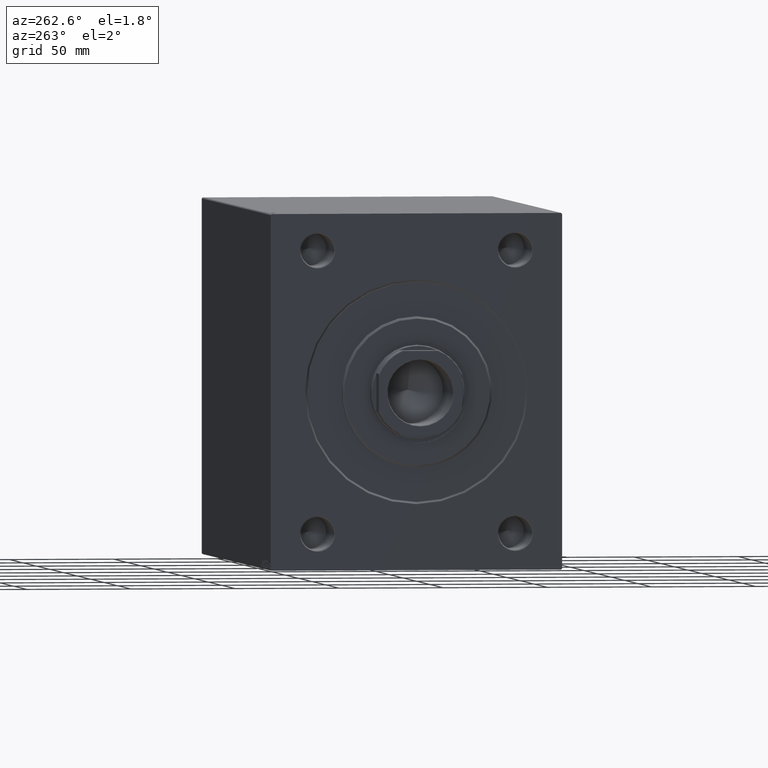
[diagram: clean part render]
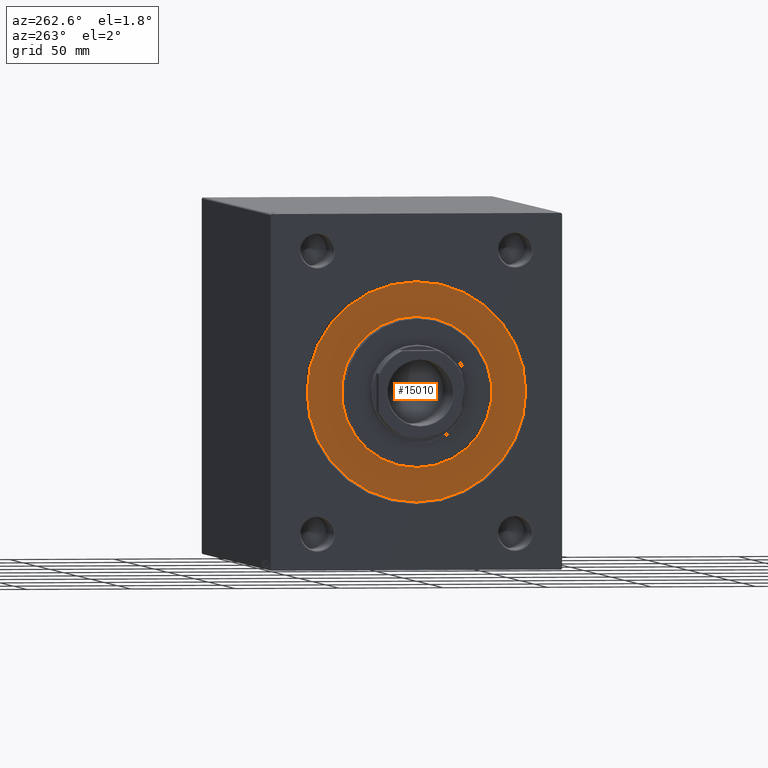
[diagram: same view with one face highlighted and labeled with its STEP entity id]
A machine part, auxiliary view. The second image highlights one B-rep face of the part: STEP entity #15010.
In plain terms, the highlighted planar face has unit normal (1, -0, -0).
Its self-contained STEP definition (entity closure, byte-faithful):
#1746 = DIRECTION ( 'NONE',  ( 0.000000000000000000, 0.000000000000000000, 1.000000000000000000 ) ) ;
#3136 = CARTESIAN_POINT ( 'NONE',  ( 0.000000000000000000, 0.000000000000000000, 0.000000000000000000 ) ) ;
#3184 = CARTESIAN_POINT ( 'NONE',  ( 0.000000000000000000, 0.000000000000000000, 0.000000000000000000 ) ) ;
#5311 = VERTEX_POINT ( 'NONE', #23106 ) ;
#5332 = DIRECTION ( 'NONE',  ( -1.000000000000000000, 0.000000000000000000, 0.000000000000000000 ) ) ;
#5666 = ORIENTED_EDGE ( 'NONE', *, *, #36070, .F. ) ;
#6900 = EDGE_CURVE ( 'NONE', #23882, #5311, #41565, .T. ) ;
#8779 = VERTEX_POINT ( 'NONE', #23732 ) ;
#9265 = CIRCLE ( 'NONE', #40633, 52.49999999999999289 ) ;
#9614 = DIRECTION ( 'NONE',  ( 1.000000000000000000, -0.000000000000000000, 0.000000000000000000 ) ) ;
#9918 = CIRCLE ( 'NONE', #24183, 36.00000000000000000 ) ;
#10194 = AXIS2_PLACEMENT_3D ( 'NONE', #3136, #44229, #33509 ) ;
#10210 = DIRECTION ( 'NONE',  ( 0.000000000000000000, 0.000000000000000000, 1.000000000000000000 ) ) ;
#13515 = AXIS2_PLACEMENT_3D ( 'NONE', #3184, #34000, #24148 ) ;
#14430 = FACE_OUTER_BOUND ( 'NONE', #32015, .T. ) ;
#15010 = ADVANCED_FACE ( 'NONE', ( #40814, #14430 ), #28061, .F. ) ;
#16893 = CARTESIAN_POINT ( 'NONE',  ( 0.000000000000000000, 0.000000000000000000, 0.000000000000000000 ) ) ;
#18889 = EDGE_LOOP ( 'NONE', ( #33039, #26718 ) ) ;
#18918 = CARTESIAN_POINT ( 'NONE',  ( 0.000000000000000000, 0.000000000000000000, 0.000000000000000000 ) ) ;
#23106 = CARTESIAN_POINT ( 'NONE',  ( 0.000000000000000000, 0.000000000000000000, -52.49999999999999289 ) ) ;
#23215 = DIRECTION ( 'NONE',  ( 0.000000000000000000, 0.000000000000000000, -1.000000000000000000 ) ) ;
#23732 = CARTESIAN_POINT ( 'NONE',  ( 0.000000000000000000, 4.408728476930470856E-15, -36.00000000000000000 ) ) ;
#23882 = VERTEX_POINT ( 'NONE', #24802 ) ;
#24148 = DIRECTION ( 'NONE',  ( 0.000000000000000000, 0.000000000000000000, -1.000000000000000000 ) ) ;
#24183 = AXIS2_PLACEMENT_3D ( 'NONE', #43559, #9614, #23215 ) ;
#24711 = CARTESIAN_POINT ( 'NONE',  ( 0.000000000000000000, 0.000000000000000000, 36.00000000000000000 ) ) ;
#24802 = CARTESIAN_POINT ( 'NONE',  ( 0.000000000000000000, 6.429395695523603167E-15, 52.49999999999999289 ) ) ;
#26718 = ORIENTED_EDGE ( 'NONE', *, *, #35357, .F. ) ;
#28061 = PLANE ( 'NONE',  #36021 ) ;
#30539 = DIRECTION ( 'NONE',  ( -1.000000000000000000, 0.000000000000000000, 0.000000000000000000 ) ) ;
#31069 = EDGE_CURVE ( 'NONE', #41657, #8779, #39197, .T. ) ;
#32015 = EDGE_LOOP ( 'NONE', ( #5666, #38317 ) ) ;
#33039 = ORIENTED_EDGE ( 'NONE', *, *, #31069, .F. ) ;
#33509 = DIRECTION ( 'NONE',  ( 0.000000000000000000, 0.000000000000000000, 1.000000000000000000 ) ) ;
#34000 = DIRECTION ( 'NONE',  ( 1.000000000000000000, -0.000000000000000000, 0.000000000000000000 ) ) ;
#35357 = EDGE_CURVE ( 'NONE', #8779, #41657, #9918, .T. ) ;
#36021 = AXIS2_PLACEMENT_3D ( 'NONE', #16893, #30539, #10210 ) ;
#36070 = EDGE_CURVE ( 'NONE', #5311, #23882, #9265, .T. ) ;
#38317 = ORIENTED_EDGE ( 'NONE', *, *, #6900, .F. ) ;
#39197 = CIRCLE ( 'NONE', #13515, 36.00000000000000000 ) ;
#40633 = AXIS2_PLACEMENT_3D ( 'NONE', #18918, #5332, #1746 ) ;
#40814 = FACE_BOUND ( 'NONE', #18889, .T. ) ;
#41565 = CIRCLE ( 'NONE', #10194, 52.49999999999999289 ) ;
#41657 = VERTEX_POINT ( 'NONE', #24711 ) ;
#43559 = CARTESIAN_POINT ( 'NONE',  ( 0.000000000000000000, 0.000000000000000000, 0.000000000000000000 ) ) ;
#44229 = DIRECTION ( 'NONE',  ( -1.000000000000000000, 0.000000000000000000, 0.000000000000000000 ) ) ;